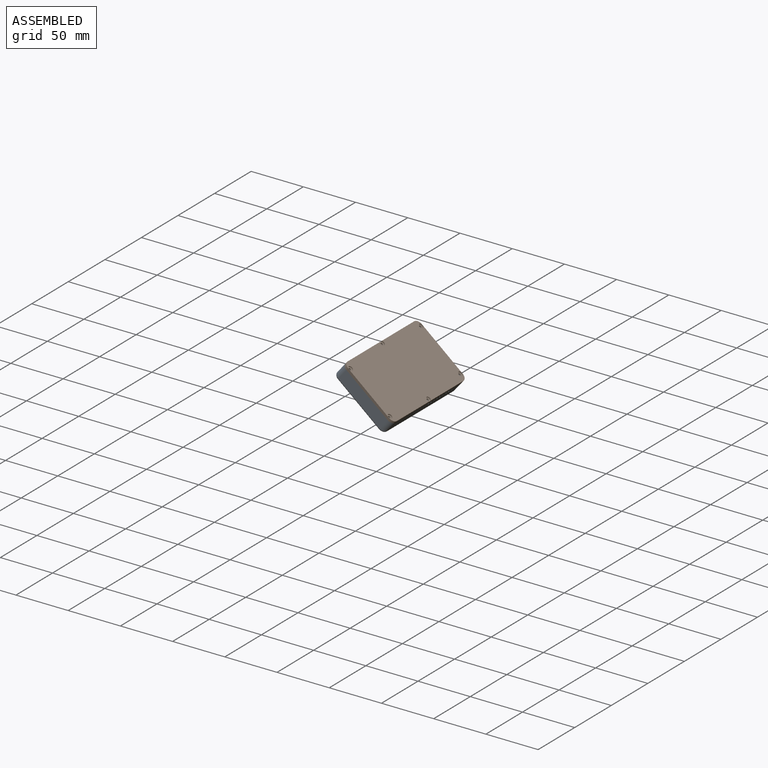
[diagram: assembled view]
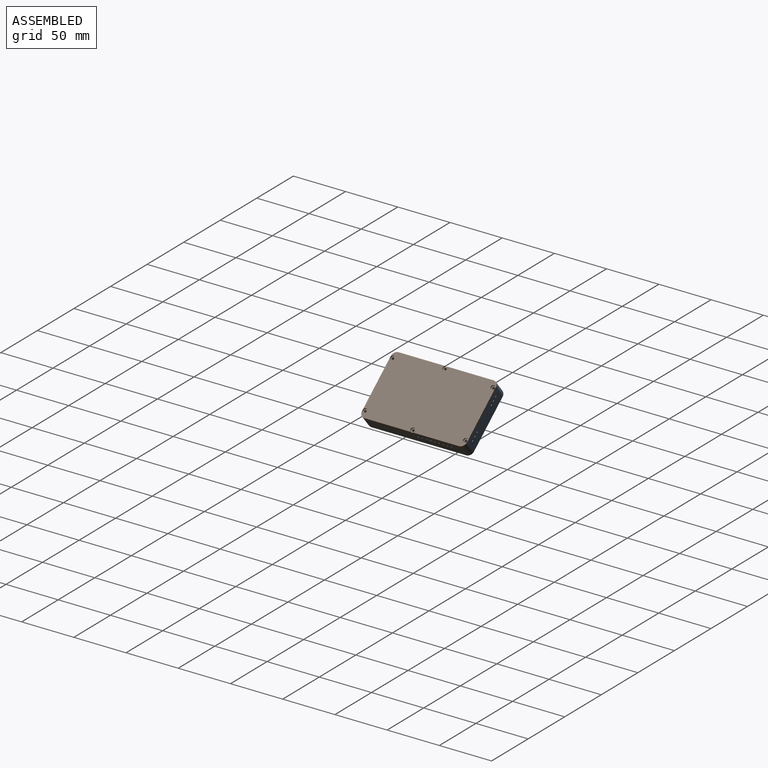
[diagram: assembled view, second angle]
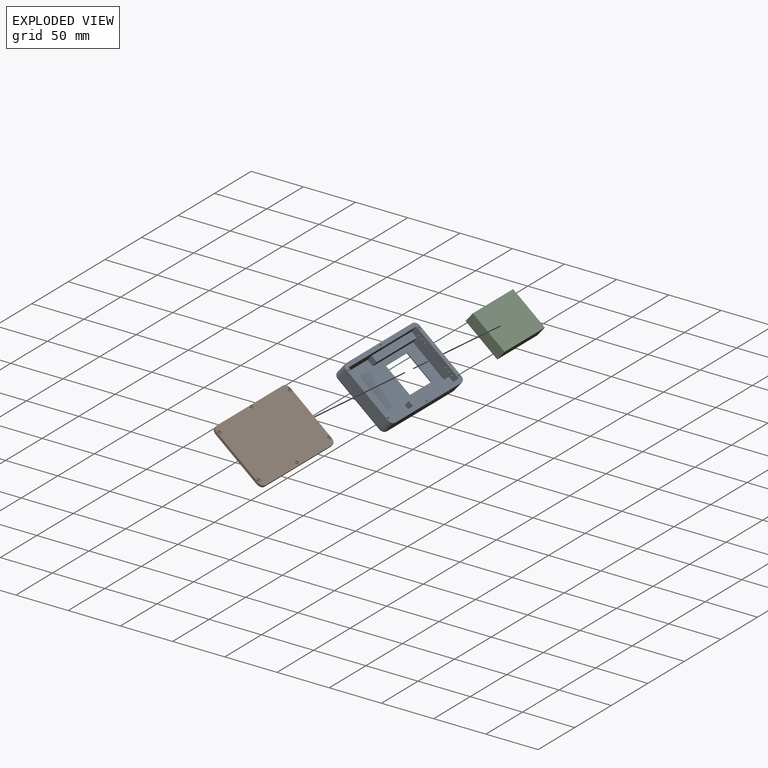
[diagram: exploded view]
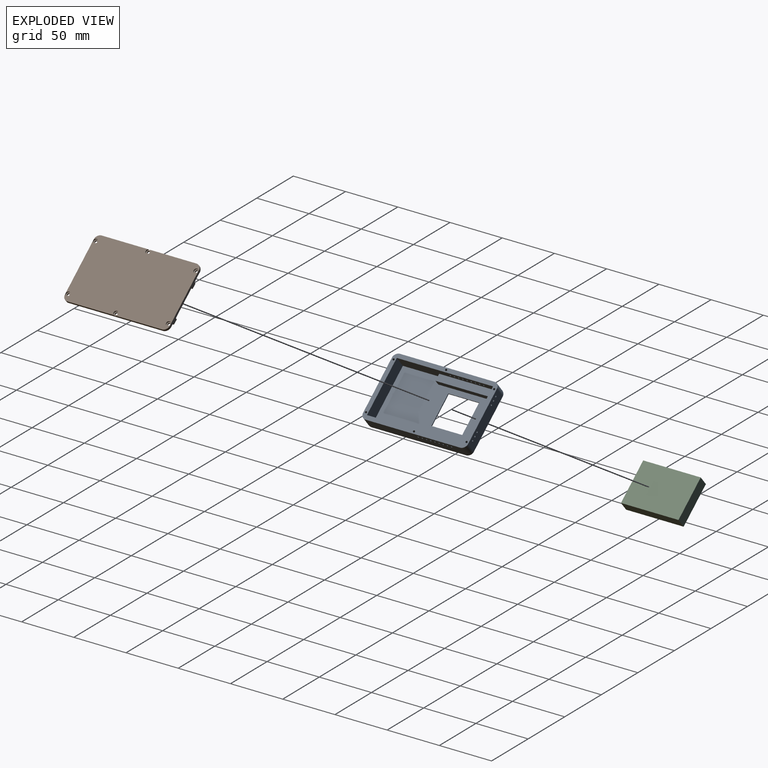
[diagram: exploded view, second angle]
FCSTD DOCUMENT  (FreeCAD 0.20R29410 (Git))
Label: sensor-assembly3
License: All rights reserved
LicenseURL: http://en.wikipedia.org/wiki/All_rights_reserved
objects: Part::FeaturePython×41, App::FeaturePython×29, App::Link×4
note: 40 computed .brp shape members not serialized (recipe doc carries the construction recipe); baked Part::Feature solids carry a one-line shape summary decoded from their .brp
EXTERNAL_REF file=battery.FCStd obj=Link
EXTERNAL_REF file=enclosure.FCStd obj=Link
EXTERNAL_REF file=cover.FCStd obj=Link
EXTERNAL_REF file=electronics.FCStd obj=Link

FEATURE [App::Link] Link  label="battery"
  LinkPlacement = pos=(-19.0821,-74.1201,-25.3205) rot=(0.321491,0.321491,0.890667;1.68632rad)
  LinkedObject = -> <external battery.FCStd>#Link
  Placement = pos=(-19.0821,-74.1201,-25.3205) rot=(0.321491,0.321491,0.890667;1.68632rad)
  _LinkOwner = 81
FEATURE [App::Link] Link002  label="enclosure"
  LinkPlacement = pos=(-19.9132,-46.6701,-25.9303) rot=(0,1,0;0.692802rad)
  LinkedObject = -> <external enclosure.FCStd>#Link
  Placement = pos=(-19.9132,-46.6701,-25.9303) rot=(0,1,0;0.692802rad)
  _LinkOwner = 81
FEATURE [App::Link] Link003  label="cover"
  LinkPlacement = pos=(-19.5939,-46.6701,-25.5455) rot=(0.339515,0,0.940601;3.14159rad)
  LinkedObject = -> <external cover.FCStd>#Link
  Placement = pos=(-19.5939,-46.6701,-25.5455) rot=(0.339515,0,0.940601;3.14159rad)
  _LinkOwner = 81
FEATURE [App::Link] Link004  label="electronics"
  LinkPlacement = pos=(-19.3899,-28.1201,-25.065) rot=(0,1,0;0.692802rad)
  LinkedObject = -> <external electronics.FCStd>#Link
  Placement = pos=(-19.3899,-28.1201,-25.065) rot=(0,1,0;0.692802rad)
  _LinkOwner = 81
FEATURE [Part::FeaturePython] Parts  # WARN: FeaturePython — macro-defined, semantics opaque (R4)
  Group = -> [Link,Link002,Link003,Link004]
  GroupMode = 0
FEATURE [Part::FeaturePython] Assembly  label="Assembly3"  # WARN: FeaturePython — macro-defined, semantics opaque (R4)
  AutoRelax = true
  BuildShape = 0
  Freeze = false
  Group = -> [Constraints,Elements,Parts]
  Verbose = false
  _SolverType = 1
  _Version = 1
FEATURE [App::FeaturePython] Constraints  # WARN: FeaturePython — macro-defined, semantics opaque (R4)
  Group = -> [Constraint004,Constraint,Constraint006,Constraint007,Constraint008,Constraint009,Constraint010,Constraint011,Constraint012]
  _Version = 1
FEATURE [App::FeaturePython] Elements  # WARN: FeaturePython — macro-defined, semantics opaque (R4)
  Group = -> [_Element,_Element001,_Element002,_Element003,_Element006,_Element007,_Element008,_Element009,_Element010,_Element012,_Element014,_Element015,_Element016,_Element017,_Element018,_Element019,_Element020,_Element021,_Element022,_Element023,_Element024,_Element025,_Element026,_Element027,_Element028,_Element029,_Element030,_Element031,_Element032,_Element033,_Element034,_Element035,_Element036,+6 more]
FEATURE [Part::FeaturePython] _Element  # link proxy (typed FeaturePython)
  Detach = false
  LinkTransform = true
  LinkedObject = -> Link [Pad.Face5]
  _Parent = -> Elements
FEATURE [Part::FeaturePython] _Element001  # link proxy (typed FeaturePython)
  Detach = false
  LinkTransform = true
  LinkedObject = -> Link002 [Pad001.Face15]
  _Parent = -> Elements
FEATURE [Part::FeaturePython] _Element002  # link proxy (typed FeaturePython)
  Detach = false
  LinkTransform = true
  LinkedObject = -> Link [Pad.Face2]
  _Parent = -> Elements
FEATURE [Part::FeaturePython] _Element003  # link proxy (typed FeaturePython)
  Detach = false
  LinkTransform = true
  LinkedObject = -> Link002 [Pad001.Face11]
  _Parent = -> Elements
FEATURE [Part::FeaturePython] _Element006  # link proxy (typed FeaturePython)
  Detach = false
  LinkTransform = true
  LinkedObject = -> Link002 [Pad001.Face13]
  _Parent = -> Elements
FEATURE [Part::FeaturePython] _Element007  # link proxy (typed FeaturePython)
  Detach = false
  LinkTransform = true
  LinkedObject = -> Link [Pad.Face3]
  _Parent = -> Elements
FEATURE [Part::FeaturePython] _Element008  # link proxy (typed FeaturePython)
  Detach = false
  LinkTransform = true
  LinkedObject = -> Link002 [Pad001.Face12]
  _Parent = -> Elements
FEATURE [Part::FeaturePython] _Element009  # link proxy (typed FeaturePython)
  Detach = false
  LinkTransform = true
  LinkedObject = -> Link002 [Pad002.Face13]
  _Parent = -> Elements
FEATURE [Part::FeaturePython] _Element010  # link proxy (typed FeaturePython)
  Detach = false
  LinkTransform = true
  LinkedObject = -> Link [Pad.Face4]
  _Parent = -> Elements
FEATURE [Part::FeaturePython] _Element012  # link proxy (typed FeaturePython)
  Detach = false
  LinkTransform = true
  LinkedObject = -> Link002 [Pad002.Face11]
  _Parent = -> Elements
FEATURE [Part::FeaturePython] _Element014  # link proxy (typed FeaturePython)
  Detach = false
  LinkTransform = true
  LinkedObject = -> Link002 [Pad002.Face18]
  _Parent = -> Elements
FEATURE [Part::FeaturePython] _Element015  # link proxy (typed FeaturePython)
  Detach = false
  LinkTransform = true
  LinkedObject = -> Link002 [Pad002.Face17]
  _Parent = -> Elements
FEATURE [App::FeaturePython] Constraint004  label="PlaneAlignment004"  # WARN: FeaturePython — macro-defined, semantics opaque (R4)
  Angle = 0
  AnglePitch = 0
  AngleRoll = 0
  Cascade = false
  Disabled = false
  Group = -> [ElementLink008,ElementLink009]
  LockAngle = false
  _ConstraintType = 37
  _Parent = -> Constraints
FEATURE [App::FeaturePython] ElementLink008  label="_Element016"  # link proxy (typed FeaturePython)
  LinkTransform = true
  LinkedObject = -> _Element016
  _Parent = -> Constraint004
FEATURE [Part::FeaturePython] _Element016  # link proxy (typed FeaturePython)
  Detach = false
  LinkTransform = true
  LinkedObject = -> Link [Pad.Face1]
  _Parent = -> Elements
FEATURE [App::FeaturePython] ElementLink009  label="_Element017"  # link proxy (typed FeaturePython)
  LinkTransform = true
  LinkedObject = -> _Element017
  _Parent = -> Constraint004
FEATURE [Part::FeaturePython] _Element017  # link proxy (typed FeaturePython)
  Detach = false
  LinkTransform = true
  LinkedObject = -> Link002 [Pad002.Face14]
  _Parent = -> Elements
FEATURE [App::FeaturePython] Constraint  label="PlaneAlignment"  # WARN: FeaturePython — macro-defined, semantics opaque (R4)
  Angle = 0
  AnglePitch = 0
  AngleRoll = 0
  Cascade = false
  Disabled = false
  Group = -> [ElementLink,ElementLink012]
  LockAngle = false
  _ConstraintType = 37
  _Parent = -> Constraints
FEATURE [App::FeaturePython] ElementLink  label="_Element"  # link proxy (typed FeaturePython)
  LinkTransform = true
  LinkedObject = -> _Element
  _Parent = -> Constraint
FEATURE [App::FeaturePython] ElementLink012  label="_Element015"  # link proxy (typed FeaturePython)
  LinkTransform = true
  LinkedObject = -> _Element015
  _Parent = -> Constraint
FEATURE [App::FeaturePython] Constraint006  label="PlaneAlignment006"  # WARN: FeaturePython — macro-defined, semantics opaque (R4)
  Angle = 0
  AnglePitch = 0
  AngleRoll = 0
  Cascade = false
  Disabled = false
  Group = -> [ElementLink013,ElementLink014]
  LockAngle = false
  _ConstraintType = 37
  _Parent = -> Constraints
FEATURE [App::FeaturePython] ElementLink013  label="_Element010"  # link proxy (typed FeaturePython)
  LinkTransform = true
  LinkedObject = -> _Element010
  _Parent = -> Constraint006
FEATURE [App::FeaturePython] ElementLink014  label="_Element009"  # link proxy (typed FeaturePython)
  LinkTransform = true
  LinkedObject = -> _Element009
  _Parent = -> Constraint006
FEATURE [Part::FeaturePython] _Element018  # link proxy (typed FeaturePython)
  Detach = false
  LinkTransform = true
  LinkedObject = -> Link003 [Pocket.Face4]
  _Parent = -> Elements
FEATURE [Part::FeaturePython] _Element019  # link proxy (typed FeaturePython)
  Detach = false
  LinkTransform = true
  LinkedObject = -> Link002 [Pocket003.Face23]
  _Parent = -> Elements
FEATURE [Part::FeaturePython] _Element020  # link proxy (typed FeaturePython)
  Detach = false
  LinkTransform = true
  LinkedObject = -> Link003 [Pocket.Vertex21]
  _Parent = -> Elements
FEATURE [Part::FeaturePython] _Element021  # link proxy (typed FeaturePython)
  Detach = false
  LinkTransform = true
  LinkedObject = -> Link002 [Pocket003.Vertex53]
  _Parent = -> Elements
FEATURE [Part::FeaturePython] _Element022  # link proxy (typed FeaturePython)
  Detach = false
  LinkTransform = true
  LinkedObject = -> Link003 [Pad.Vertex16]
  _Parent = -> Elements
FEATURE [Part::FeaturePython] _Element023  # link proxy (typed FeaturePython)
  Detach = false
  LinkTransform = true
  LinkedObject = -> Link002 [Pocket001.Vertex32]
  _Parent = -> Elements
FEATURE [Part::FeaturePython] _Element024  # link proxy (typed FeaturePython)
  Detach = false
  LinkTransform = true
  LinkedObject = -> Link002 [Pocket001.Vertex28]
  _Parent = -> Elements
FEATURE [Part::FeaturePython] _Element025  # link proxy (typed FeaturePython)
  Detach = false
  LinkTransform = true
  LinkedObject = -> Link003 [Pad.Vertex13]
  _Parent = -> Elements
FEATURE [Part::FeaturePython] _Element026  # link proxy (typed FeaturePython)
  Detach = false
  LinkTransform = true
  LinkedObject = -> Link002 [Pocket001.Vertex31]
  _Parent = -> Elements
FEATURE [Part::FeaturePython] _Element027  # link proxy (typed FeaturePython)
  Detach = false
  LinkTransform = true
  LinkedObject = -> Link003 [Pad.Vertex14]
  _Parent = -> Elements
FEATURE [Part::FeaturePython] _Element028  # link proxy (typed FeaturePython)
  Detach = false
  LinkTransform = true
  LinkedObject = -> Link002 [Pocket003.Face46]
  _Parent = -> Elements
FEATURE [Part::FeaturePython] _Element029  # link proxy (typed FeaturePython)
  Detach = false
  LinkTransform = true
  LinkedObject = -> Link002 [Pocket003.Vertex25]
  _Parent = -> Elements
FEATURE [Part::FeaturePython] _Element030  # link proxy (typed FeaturePython)
  Detach = false
  LinkTransform = true
  LinkedObject = -> Link003 [Pad.Vertex1]
  _Parent = -> Elements
FEATURE [Part::FeaturePython] _Element031  # link proxy (typed FeaturePython)
  Detach = false
  LinkTransform = true
  LinkedObject = -> Link002 [Pocket003.Vertex54]
  _Parent = -> Elements
FEATURE [Part::FeaturePython] _Element032  # link proxy (typed FeaturePython)
  Detach = false
  LinkTransform = true
  LinkedObject = -> Link002 [Pocket003.Vertex26]
  _Parent = -> Elements
FEATURE [Part::FeaturePython] _Element033  # link proxy (typed FeaturePython)
  Detach = false
  LinkTransform = true
  LinkedObject = -> Link003 [Pad.Vertex5]
  _Parent = -> Elements
FEATURE [App::FeaturePython] Constraint007  label="PointsCoincident"  # WARN: FeaturePython — macro-defined, semantics opaque (R4)
  Disabled = false
  Group = -> [ElementLink015,ElementLink016]
  _ConstraintType = 1
  _Parent = -> Constraints
FEATURE [App::FeaturePython] ElementLink015  label="_Element027"  # link proxy (typed FeaturePython)
  LinkTransform = true
  LinkedObject = -> _Element027
  _Parent = -> Constraint007
FEATURE [App::FeaturePython] ElementLink016  label="_Element032"  # link proxy (typed FeaturePython)
  LinkTransform = true
  LinkedObject = -> _Element032
  _Parent = -> Constraint007
FEATURE [App::FeaturePython] Constraint008  label="PointsCoincident001"  # WARN: FeaturePython — macro-defined, semantics opaque (R4)
  Disabled = false
  Group = -> [ElementLink017,ElementLink018]
  _ConstraintType = 1
  _Parent = -> Constraints
FEATURE [App::FeaturePython] ElementLink017  label="_Element022"  # link proxy (typed FeaturePython)
  LinkTransform = true
  LinkedObject = -> _Element022
  _Parent = -> Constraint008
FEATURE [App::FeaturePython] ElementLink018  label="_Element029"  # link proxy (typed FeaturePython)
  LinkTransform = true
  LinkedObject = -> _Element029
  _Parent = -> Constraint008
FEATURE [App::FeaturePython] Constraint009  label="PointsCoincident002"  # WARN: FeaturePython — macro-defined, semantics opaque (R4)
  Disabled = false
  Group = -> [ElementLink019,ElementLink020]
  _ConstraintType = 1
  _Parent = -> Constraints
FEATURE [App::FeaturePython] ElementLink019  label="_Element034"  # link proxy (typed FeaturePython)
  LinkTransform = true
  LinkedObject = -> _Element034
  _Parent = -> Constraint009
FEATURE [Part::FeaturePython] _Element034  # link proxy (typed FeaturePython)
  Detach = false
  LinkTransform = true
  LinkedObject = -> Link002 [Pocket003.Vertex55]
  _Parent = -> Elements
FEATURE [App::FeaturePython] ElementLink020  label="_Element033"  # link proxy (typed FeaturePython)
  LinkTransform = true
  LinkedObject = -> _Element033
  _Parent = -> Constraint009
FEATURE [App::FeaturePython] Constraint010  label="PlaneAlignment007"  # WARN: FeaturePython — macro-defined, semantics opaque (R4)
  Angle = 0
  AnglePitch = 0
  AngleRoll = 0
  Cascade = false
  Disabled = false
  Group = -> [ElementLink021,ElementLink022]
  LockAngle = false
  _ConstraintType = 37
  _Parent = -> Constraints
FEATURE [App::FeaturePython] ElementLink021  label="_Element035"  # link proxy (typed FeaturePython)
  LinkTransform = true
  LinkedObject = -> _Element035
  _Parent = -> Constraint010
FEATURE [Part::FeaturePython] _Element035  # link proxy (typed FeaturePython)
  Detach = false
  LinkTransform = true
  LinkedObject = -> Link004 [Pad.Face5]
  _Parent = -> Elements
FEATURE [App::FeaturePython] ElementLink022  label="_Element036"  # link proxy (typed FeaturePython)
  LinkTransform = true
  LinkedObject = -> _Element036
  _Parent = -> Constraint010
FEATURE [Part::FeaturePython] _Element036  # link proxy (typed FeaturePython)
  Detach = false
  LinkTransform = true
  LinkedObject = -> Link002 [Pocket003.Face22]
  _Parent = -> Elements
FEATURE [App::FeaturePython] Constraint011  label="PointsCoincident003"  # WARN: FeaturePython — macro-defined, semantics opaque (R4)
  Disabled = false
  Group = -> [ElementLink023,ElementLink024]
  _ConstraintType = 1
  _Parent = -> Constraints
FEATURE [App::FeaturePython] ElementLink023  label="_Element037"  # link proxy (typed FeaturePython)
  LinkTransform = true
  LinkedObject = -> _Element037
  _Parent = -> Constraint011
FEATURE [Part::FeaturePython] _Element037  # link proxy (typed FeaturePython)
  Detach = false
  LinkTransform = true
  LinkedObject = -> Link002 [Pocket003.Vertex57]
  _Parent = -> Elements
FEATURE [App::FeaturePython] ElementLink024  label="_Element038"  # link proxy (typed FeaturePython)
  LinkTransform = true
  LinkedObject = -> _Element038
  _Parent = -> Constraint011
FEATURE [Part::FeaturePython] _Element038  # link proxy (typed FeaturePython)
  Detach = false
  LinkTransform = true
  LinkedObject = -> Link004 [Pad.Vertex1]
  _Parent = -> Elements
FEATURE [Part::FeaturePython] _Element039  # link proxy (typed FeaturePython)
  Detach = false
  LinkTransform = true
  LinkedObject = -> Link004 [Pad.Vertex3]
  _Parent = -> Elements
FEATURE [Part::FeaturePython] _Element040  # link proxy (typed FeaturePython)
  Detach = false
  LinkTransform = true
  LinkedObject = -> Link002 [Pocket003.Vertex58]
  _Parent = -> Elements
FEATURE [App::FeaturePython] Constraint012  label="PlaneAlignment008"  # WARN: FeaturePython — macro-defined, semantics opaque (R4)
  Angle = 0
  AnglePitch = 0
  AngleRoll = 0
  Cascade = false
  Disabled = false
  Group = -> [ElementLink025,ElementLink026]
  LockAngle = false
  _ConstraintType = 37
  _Parent = -> Constraints
FEATURE [App::FeaturePython] ElementLink025  label="_Element041"  # link proxy (typed FeaturePython)
  LinkTransform = true
  LinkedObject = -> _Element041
  _Parent = -> Constraint012
FEATURE [Part::FeaturePython] _Element041  # link proxy (typed FeaturePython)
  Detach = false
  LinkTransform = true
  LinkedObject = -> Link002 [Pocket003.Face48]
  _Parent = -> Elements
FEATURE [App::FeaturePython] ElementLink026  label="_Element042"  # link proxy (typed FeaturePython)
  LinkTransform = true
  LinkedObject = -> _Element042
  _Parent = -> Constraint012
FEATURE [Part::FeaturePython] _Element042  # link proxy (typed FeaturePython)
  Detach = false
  LinkTransform = true
  LinkedObject = -> Link004 [Pad.Face1]
  _Parent = -> Elements

RESOLVED EXTERNAL PARTS (link-assembly join: the EXTERNAL_REF files above that resolve inside this repo's crawl, each included once):
---- part cover.FCStd = doc fcstd_3ed699d86daf ----
FCSTD DOCUMENT  (FreeCAD 0.20R29410 (Git))
Label: cover
License: All rights reserved
LicenseURL: http://en.wikipedia.org/wiki/All_rights_reserved
objects: Sketcher::SketchObject×3, PartDesign::Pad×2, PartDesign::Pocket×1, App::Link×1, PartDesign::Body×1
note: 10 computed .brp shape members not serialized (recipe doc carries the construction recipe); baked Part::Feature solids carry a one-line shape summary decoded from their .brp

FEATURE [Sketcher::SketchObject] Sketch008
  FullyConstrained = true
  MapMode = 5
  Placement = pos=(0,0,13.5) rot=(0,0,1;0rad)
  sketch-geometry (14):
    g0: LineSegment StartX=-30.575 StartY=45.3 StartZ=0 EndX=-30.575 EndY=-45.3 EndZ=0
    g1: LineSegment StartX=30.575 StartY=-45.3 StartZ=0 EndX=30.575 EndY=45.3 EndZ=0
    g2: ArcOfCircle CenterX=25.575 CenterY=45.3 CenterZ=0 NormalX=0 NormalY=0 NormalZ=1 AngleXU=0 Radius=5 StartAngle=-2.691e-13 EndAngle=1.5708
    g3: ArcOfCircle CenterX=-25.575 CenterY=45.3 CenterZ=0 NormalX=0 NormalY=0 NormalZ=1 AngleXU=0 Radius=5 StartAngle=1.5708 EndAngle=3.14159
    g4: ArcOfCircle CenterX=-25.575 CenterY=-45.3 CenterZ=0 NormalX=0 NormalY=0 NormalZ=1 AngleXU=0 Radius=5 StartAngle=3.14159 EndAngle=4.71239
    g5: ArcOfCircle CenterX=25.575 CenterY=-45.3 CenterZ=0 NormalX=0 NormalY=0 NormalZ=1 AngleXU=0 Radius=5 StartAngle=4.71239 EndAngle=6.28319
    g6: LineSegment StartX=-25.575 StartY=50.3 StartZ=0 EndX=25.575 EndY=50.3 EndZ=0
    g7: LineSegment StartX=-25.575 StartY=-50.3 StartZ=0 EndX=25.575 EndY=-50.3 EndZ=0
    g8: Circle CenterX=24.475 CenterY=48.14 CenterZ=0 NormalX=0 NormalY=0 NormalZ=1 AngleXU=0 Radius=1.15
    g9: Circle CenterX=-24.475 CenterY=48.14 CenterZ=0 NormalX=0 NormalY=0 NormalZ=1 AngleXU=0 Radius=1.15
    g10: Circle CenterX=-24.475 CenterY=-48.14 CenterZ=0 NormalX=0 NormalY=0 NormalZ=1 AngleXU=0 Radius=1.15
    g11: Circle CenterX=24.475 CenterY=-48.14 CenterZ=0 NormalX=0 NormalY=0 NormalZ=1 AngleXU=0 Radius=1.15
    g12: Circle CenterX=28.54 CenterY=0 CenterZ=0 NormalX=0 NormalY=0 NormalZ=1 AngleXU=0 Radius=1.15
    g13: Circle CenterX=-28.54 CenterY=0 CenterZ=0 NormalX=0 NormalY=0 NormalZ=1 AngleXU=0 Radius=1.15
  constraints (35):
    c: Diameter(g8) = 2.3
    c: Diameter(g9) = 2.3
    c: Diameter(g11) = 2.3
    c: Diameter(g10) = 2.3
    c: Diameter(g12) = 2.3
    c: Diameter(g13) = 2.3
    c: Radius(g2) = 5
    c: Equal(g2,g3)
    c: Equal(g3,g5)
    c: Equal(g5,g4)
    c: Equal(g7,g6)
    c: Equal(g1,g0)
    c: Tangent(g1,g5) = -1.5708
    c: Tangent(g5,g7) = -1.5708
    c: Tangent(g4,g7) = -1.5708
    c: Tangent(g0,g4) = -1.5708
    c: Tangent(g0,g3) = -1.5708
    c: Tangent(g3,g6) = 1.5708
    c: Tangent(g2,g6) = 1.5708
    c: Tangent(g1,g2) = -1.5708
    c: Symmetric(g3,g2,g-2)
    c: Symmetric(g1,g1,g-1)
    c: DistanceX(g8,g2) = 1.1
    c: DistanceY(g8,g2) = 2.16
    c: DistanceY(g9,g3) = 2.16
    c: DistanceX(g3,g9) = 1.1
    c: DistanceX(g4,g10) = 1.1
    c: DistanceX(g11,g5) = 1.1
    c: DistanceY(g5,g11) = 2.16
    c: DistanceY(g4,g10) = 2.16
    c: DistanceX(g13,g12) = 57.08
    c: Symmetric(g12,g13,g-2)
    c: PointOnObject(g12,g-1)
    c: DistanceX(g0,g1) = 61.15
    c: DistanceY(g5,g2) = 100.6
FEATURE [PartDesign::Pad] Pad003
  Direction = (0,0,1)
  Length = 2.5
  Length2 = 10
  Placement = pos=(0,0,13.5) rot=(0,0,1;0rad)
  Profile = -> Sketch008
  ReferenceAxis = -> Sketch008 [N_Axis]
  Type = 0
FEATURE [Sketcher::SketchObject] Sketch
  ExternalGeometry = -> [Pad003]
  FullyConstrained = true
  MapMode = 5
  Placement = pos=(0,0,16) rot=(0,0,1;0rad)
  Support = -> [Pad003]
  sketch-geometry (6):
    g0: Circle CenterX=-24.475 CenterY=-48.14 CenterZ=0 NormalX=0 NormalY=0 NormalZ=1 AngleXU=0 Radius=2.125
    g1: Circle CenterX=24.475 CenterY=-48.14 CenterZ=0 NormalX=0 NormalY=0 NormalZ=1 AngleXU=0 Radius=2.125
    g2: Circle CenterX=-24.475 CenterY=48.14 CenterZ=0 NormalX=0 NormalY=0 NormalZ=1 AngleXU=0 Radius=2.125
    g3: Circle CenterX=24.475 CenterY=48.14 CenterZ=0 NormalX=0 NormalY=0 NormalZ=1 AngleXU=0 Radius=2.125
    g4: Circle CenterX=28.54 CenterY=0 CenterZ=0 NormalX=0 NormalY=0 NormalZ=1 AngleXU=0 Radius=2.125
    g5: Circle CenterX=-28.54 CenterY=0 CenterZ=0 NormalX=0 NormalY=0 NormalZ=1 AngleXU=0 Radius=2.125
  constraints (14):
    c: Coincident(g0,g-8)
    c: Coincident(g1,g-7)
    c: Diameter(g3) = 4.25
    c: Coincident(g2,g-4)
    c: Coincident(g3,g-3)
    c: Coincident(g4,g-6)
    c: Coincident(g5,g-5)
    c: Equal(g2,g5)
    c: Equal(g5,g0)
    c: Equal(g0,g1)
    c: Equal(g1,g4)
    c: Equal(g4,g3)
    c: DistanceX(g-12,g-11) = 61.15
    c: DistanceY(g-10,g-9) = 100.6
FEATURE [PartDesign::Pocket] Pocket
  BaseFeature = -> Pad003
  Direction = (0,0,-1)
  Length = 1.1
  Length2 = 5
  Placement = pos=(0,0,13.5) rot=(0,0,1;0rad)
  Profile = -> Sketch
  ReferenceAxis = -> Sketch [N_Axis]
  Type = 0
FEATURE [App::Link] Link  label="cover001"
  LinkedObject = -> Body
FEATURE [Sketcher::SketchObject] Sketch009
  ExternalGeometry = -> [Pocket]
  FullyConstrained = true
  MapMode = 5
  Placement = pos=(0,0,13.5) rot=(1,0,0;3.14159rad)
  Support = -> [Pocket]
  sketch-geometry (16):
    g0: LineSegment StartX=14.075 StartY=44.8 StartZ=0 EndX=19.075 EndY=44.8 EndZ=0
    g1: LineSegment StartX=19.075 StartY=44.8 StartZ=0 EndX=19.075 EndY=37.8 EndZ=0
    g2: LineSegment StartX=19.075 StartY=37.8 StartZ=0 EndX=14.075 EndY=37.8 EndZ=0
    g3: LineSegment StartX=14.075 StartY=37.8 StartZ=0 EndX=14.075 EndY=44.8 EndZ=0
    g4: LineSegment StartX=-19.075 StartY=44.8 StartZ=0 EndX=-14.075 EndY=44.8 EndZ=0
    g5: LineSegment StartX=-14.075 StartY=44.8 StartZ=0 EndX=-14.075 EndY=37.8 EndZ=0
    g6: LineSegment StartX=-14.075 StartY=37.8 StartZ=0 EndX=-19.075 EndY=37.8 EndZ=0
    g7: LineSegment StartX=-19.075 StartY=37.8 StartZ=0 EndX=-19.075 EndY=44.8 EndZ=0
    g8: LineSegment StartX=11.075 StartY=-8.4 StartZ=0 EndX=19.075 EndY=-8.4 EndZ=0
    g9: LineSegment StartX=19.075 StartY=-8.4 StartZ=0 EndX=19.075 EndY=-5.9 EndZ=0
    g10: LineSegment StartX=19.075 StartY=-5.9 StartZ=0 EndX=11.075 EndY=-5.9 EndZ=0
    g11: LineSegment StartX=11.075 StartY=-5.9 StartZ=0 EndX=11.075 EndY=-8.4 EndZ=0
    g12: LineSegment StartX=-11.075 StartY=-8.4 StartZ=0 EndX=-19.075 EndY=-8.4 EndZ=0
    g13: LineSegment StartX=-19.075 StartY=-8.4 StartZ=0 EndX=-19.075 EndY=-5.9 EndZ=0
    g14: LineSegment StartX=-19.075 StartY=-5.9 StartZ=0 EndX=-11.075 EndY=-5.9 EndZ=0
    g15: LineSegment StartX=-11.075 StartY=-5.9 StartZ=0 EndX=-11.075 EndY=-8.4 EndZ=0
  constraints (48):
    c: Coincident(g0,g1)
    c: Coincident(g1,g2)
    c: Coincident(g2,g3)
    c: Coincident(g3,g0)
    c: Horizontal(g0)
    c: Horizontal(g2)
    c: Vertical(g1)
    c: Vertical(g3)
    c: DistanceX(g0,g-3) = 11.5
    c: DistanceY(g0,g-5) = 5.5
    c: Distance(g1) = 7
    c: Distance(g0) = 5
    c: Coincident(g4,g5)
    c: Coincident(g5,g6)
    c: Coincident(g6,g7)
    c: Coincident(g7,g4)
    c: Horizontal(g4)
    c: Horizontal(g6)
    c: Vertical(g5)
    c: Vertical(g7)
    c: Distance(g5) = 7
    c: Distance(g4) = 5
    c: DistanceX(g-4,g4) = 11.5
    c: DistanceY(g4,g-5) = 5.5
    c: Coincident(g8,g9)
    c: Coincident(g9,g10)
    c: Coincident(g10,g11)
    c: Coincident(g11,g8)
    c: Horizontal(g8)
    c: Horizontal(g10)
    c: Vertical(g9)
    c: Vertical(g11)
    c: Distance(g9) = 2.5
    c: DistanceX(g10,g10) = 8
    c: DistanceX(g8,g-3) = 11.5
    c: DistanceY(g-6,g9) = 44.4
    c: Coincident(g12,g13)
    c: Coincident(g13,g14)
    c: Coincident(g14,g15)
    c: Coincident(g15,g12)
    c: Horizontal(g12)
    c: Horizontal(g14)
    c: Vertical(g13)
    c: Vertical(g15)
    c: DistanceY(g-6,g13) = 44.4
    c: DistanceX(g-4,g13) = 11.5
    c: Equal(g14,g10)
    c: Equal(g11,g15)
FEATURE [PartDesign::Pad] Pad
  BaseFeature = -> Pocket
  Direction = (0,0,-1)
  Length = 10.45
  Length2 = 10
  Placement = pos=(0,0,13.5) rot=(0,0,1;0rad)
  Profile = -> Sketch009
  ReferenceAxis = -> Sketch009 [N_Axis]
  Type = 0
FEATURE [PartDesign::Body] Body  label="cover"
  Group = -> [Sketch008,Pad003,Sketch,Pocket,Sketch009,Pad]
  Origin = -> Origin
  Tip = -> Pad
---- part electronics.FCStd = doc fcstd_2c29c64a46d6 ----
FCSTD DOCUMENT  (FreeCAD 0.20R29410 (Git))
Label: electronics
License: All rights reserved
LicenseURL: http://en.wikipedia.org/wiki/All_rights_reserved
objects: Sketcher::SketchObject×1, PartDesign::Pad×1, PartDesign::Body×1, App::Link×1
note: 4 computed .brp shape members not serialized (recipe doc carries the construction recipe); baked Part::Feature solids carry a one-line shape summary decoded from their .brp

FEATURE [Sketcher::SketchObject] Sketch
  FullyConstrained = true
  MapMode = 5
  Support = -> [XY_Plane]
  sketch-geometry (4):
    g0: LineSegment StartX=-19.75 StartY=27.55 StartZ=0 EndX=19.75 EndY=27.55 EndZ=0
    g1: LineSegment StartX=19.75 StartY=27.55 StartZ=0 EndX=19.75 EndY=-27.55 EndZ=0
    g2: LineSegment StartX=19.75 StartY=-27.55 StartZ=0 EndX=-19.75 EndY=-27.55 EndZ=0
    g3: LineSegment StartX=-19.75 StartY=-27.55 StartZ=0 EndX=-19.75 EndY=27.55 EndZ=0
  constraints (10):
    c: Coincident(g0,g1)
    c: Coincident(g1,g2)
    c: Coincident(g2,g3)
    c: Coincident(g3,g0)
    c: Horizontal(g2)
    c: Vertical(g1)
    c: DistanceY(g1,g1) = 55.1
    c: DistanceX(g0,g0) = 39.5
    c: Symmetric(g0,g0,g-2)
    c: Symmetric(g2,g0,g-1)
FEATURE [PartDesign::Pad] Pad  label="pad"
  Direction = (0,0,1)
  Length = 11
  Length2 = 10
  Profile = -> Sketch
  ReferenceAxis = -> Sketch [N_Axis]
  Type = 0
FEATURE [PartDesign::Body] Body  label="electronics"
  Group = -> [Sketch,Pad]
  Origin = -> Origin
  Tip = -> Pad
FEATURE [App::Link] Link  label="electronics001"
  LinkedObject = -> Body
---- part enclosure.FCStd = doc fcstd_9a53d325e945 ----
FCSTD DOCUMENT  (FreeCAD 0.20R29410 (Git))
Label: enclosure
License: All rights reserved
LicenseURL: http://en.wikipedia.org/wiki/All_rights_reserved
objects: Sketcher::SketchObject×7, PartDesign::Pocket×4, PartDesign::Pad×3, PartDesign::Fillet×2, App::Link×1, PartDesign::Body×1
note: 26 computed .brp shape members not serialized (recipe doc carries the construction recipe); baked Part::Feature solids carry a one-line shape summary decoded from their .brp

FEATURE [Sketcher::SketchObject] Sketch
  FullyConstrained = true
  MapMode = 5
  Support = -> [XY_Plane]
  sketch-geometry (4):
    g0: LineSegment StartX=-30.575 StartY=50.3 StartZ=0 EndX=30.575 EndY=50.3 EndZ=0
    g1: LineSegment StartX=30.575 StartY=50.3 StartZ=0 EndX=30.575 EndY=-50.3 EndZ=0
    g2: LineSegment StartX=30.575 StartY=-50.3 StartZ=0 EndX=-30.575 EndY=-50.3 EndZ=0
    g3: LineSegment StartX=-30.575 StartY=-50.3 StartZ=0 EndX=-30.575 EndY=50.3 EndZ=0
  constraints (10):
    c: Coincident(g0,g1)
    c: Coincident(g1,g2)
    c: Coincident(g2,g3)
    c: Coincident(g3,g0)
    c: Horizontal(g0)
    c: Vertical(g3)
    c: DistanceX(g2,g2) = 61.15
    c: Symmetric(g2,g1,g-2)
    c: DistanceY(g1,g1) = 100.6
    c: Symmetric(g0,g1,g-1)
FEATURE [PartDesign::Pad] Pad
  Direction = (0,0,1)
  Length = 1
  Length2 = 10
  Profile = -> Sketch
  ReferenceAxis = -> Sketch [N_Axis]
  Type = 0
FEATURE [Sketcher::SketchObject] Sketch001
  ExternalGeometry = -> [Pad]
  FullyConstrained = true
  MapMode = 5
  Placement = pos=(0,0,1) rot=(0,0,1;0rad)
  Support = -> [Pad]
  sketch-geometry (8):
    g0: LineSegment StartX=-26.5 StartY=46.1 StartZ=0 EndX=26.5 EndY=46.1 EndZ=0
    g1: LineSegment StartX=26.5 StartY=46.1 StartZ=0 EndX=26.5 EndY=-46.1 EndZ=0
    g2: LineSegment StartX=26.5 StartY=-46.1 StartZ=0 EndX=-26.5 EndY=-46.1 EndZ=0
    g3: LineSegment StartX=-26.5 StartY=-46.1 StartZ=0 EndX=-26.5 EndY=46.1 EndZ=0
    g4: LineSegment StartX=-30.575 StartY=50.3 StartZ=0 EndX=30.575 EndY=50.3 EndZ=0
    g5: LineSegment StartX=30.575 StartY=50.3 StartZ=0 EndX=30.575 EndY=-50.3 EndZ=0
    g6: LineSegment StartX=30.575 StartY=-50.3 StartZ=0 EndX=-30.575 EndY=-50.3 EndZ=0
    g7: LineSegment StartX=-30.575 StartY=-50.3 StartZ=0 EndX=-30.575 EndY=50.3 EndZ=0
  constraints (20):
    c: Coincident(g0,g1)
    c: Coincident(g1,g2)
    c: Coincident(g2,g3)
    c: Coincident(g3,g0)
    c: Horizontal(g0)
    c: Vertical(g1)
    c: Coincident(g4,g5)
    c: Coincident(g5,g6)
    c: Coincident(g6,g7)
    c: Coincident(g7,g4)
    c: Horizontal(g4)
    c: Horizontal(g6)
    c: Vertical(g5)
    c: Vertical(g7)
    c: Coincident(g4,g-3)
    c: Coincident(g5,g-4)
    c: DistanceX(g0,g0) = 53
    c: DistanceY(g1,g1) = 92.2
    c: Symmetric(g2,g1,g-2)
    c: Symmetric(g0,g2,g-1)
FEATURE [PartDesign::Pad] Pad001
  BaseFeature = -> Pad
  Direction = (0,0,1)
  Length = 13
  Length2 = 10
  Profile = -> Sketch001
  ReferenceAxis = -> Sketch001 [N_Axis]
  Type = 0
FEATURE [App::Link] Link  label="enclosure001"
  LinkedObject = -> Body
FEATURE [Sketcher::SketchObject] Sketch002
  ExternalGeometry = -> [Pad001]
  FullyConstrained = true
  MapMode = 5
  Placement = pos=(0,0,1) rot=(0,0,1;0rad)
  Support = -> [Pad001]
  sketch-geometry (8):
    g0: LineSegment StartX=19.9 StartY=46.1 StartZ=0 EndX=26.5 EndY=46.1 EndZ=0
    g1: LineSegment StartX=26.5 StartY=46.1 StartZ=0 EndX=26.5 EndY=-8.65 EndZ=0
    g2: LineSegment StartX=26.5 StartY=-8.65 StartZ=0 EndX=19.9 EndY=-8.65 EndZ=0
    g3: LineSegment StartX=19.9 StartY=-8.65 StartZ=0 EndX=19.9 EndY=46.1 EndZ=0
    g4: LineSegment StartX=-19.9 StartY=46.1 StartZ=0 EndX=-26.5 EndY=46.1 EndZ=0
    g5: LineSegment StartX=-26.5 StartY=46.1 StartZ=0 EndX=-26.5 EndY=-8.65 EndZ=0
    g6: LineSegment StartX=-26.5 StartY=-8.65 StartZ=0 EndX=-19.9 EndY=-8.65 EndZ=0
    g7: LineSegment StartX=-19.9 StartY=-8.65 StartZ=0 EndX=-19.9 EndY=46.1 EndZ=0
  constraints (21):
    c: Coincident(g0,g1)
    c: Coincident(g1,g2)
    c: Coincident(g2,g3)
    c: Coincident(g3,g0)
    c: Horizontal(g0)
    c: Horizontal(g2)
    c: Vertical(g1)
    c: Vertical(g3)
    c: Coincident(g0,g-3)
    c: Coincident(g4,g5)
    c: Coincident(g5,g6)
    c: Coincident(g6,g7)
    c: Coincident(g7,g4)
    c: Horizontal(g6)
    c: Vertical(g5)
    c: Vertical(g7)
    c: Coincident(g4,g-4)
    c: DistanceX(g4,g0) = 39.8
    c: DistanceY(g3,g3) = 54.75
    c: Equal(g7,g3)
    c: Symmetric(g4,g0,g-2)
FEATURE [PartDesign::Pad] Pad002
  BaseFeature = -> Pad001
  Direction = (0,0,1)
  Length = 6
  Length2 = 10
  Profile = -> Sketch002
  ReferenceAxis = -> Sketch002 [N_Axis]
  Type = 0
FEATURE [Sketcher::SketchObject] Sketch003
  ExternalGeometry = -> [Pad002]
  FullyConstrained = true
  MapMode = 5
  Placement = pos=(0,0,1) rot=(0,0,1;0rad)
  Support = -> [Pad002]
  sketch-geometry (4):
    g0: LineSegment StartX=-15 StartY=33.1 StartZ=0 EndX=15 EndY=33.1 EndZ=0
    g1: LineSegment StartX=15 StartY=33.1 StartZ=0 EndX=15 EndY=3.6 EndZ=0
    g2: LineSegment StartX=15 StartY=3.6 StartZ=0 EndX=-15 EndY=3.6 EndZ=0
    g3: LineSegment StartX=-15 StartY=3.6 StartZ=0 EndX=-15 EndY=33.1 EndZ=0
  constraints (12):
    c: Coincident(g0,g1)
    c: Coincident(g1,g2)
    c: Coincident(g2,g3)
    c: Coincident(g3,g0)
    c: Horizontal(g2)
    c: Vertical(g1)
    c: Vertical(g3)
    c: DistanceX(g0,g0) = 30
    c: DistanceY(g0,g-3) = 13
    c: DistanceY(g1,g1) = 29.5
    c: DistanceX(g-1,g0) = 15
    c: Horizontal(g0)
FEATURE [PartDesign::Pocket] Pocket
  BaseFeature = -> Pad002
  Direction = (0,0,-1)
  Length = 0
  Length2 = 5
  Profile = -> Sketch003
  ReferenceAxis = -> Sketch003 [N_Axis]
  Type = 3
  UpToFace = -> Pad002 [Face4]
FEATURE [PartDesign::Fillet] Fillet
  Base = -> Pocket [Edge22,Edge8,Edge20,Edge5,Edge16,Edge1,Edge17,Edge2]
  BaseFeature = -> Pocket
  Radius = 5
  SupportTransform = false
  UseAllEdges = false
FEATURE [PartDesign::Fillet] Fillet001
  Base = -> Fillet [Edge1,Edge5,Edge7]
  BaseFeature = -> Fillet
  Radius = 1.99
  SupportTransform = false
  UseAllEdges = false
FEATURE [Sketcher::SketchObject] Sketch005
  ExternalGeometry = -> [Fillet001]
  FullyConstrained = false
  MapMode = 5
  Placement = pos=(0,0,14) rot=(0,0,1;0rad)
  Support = -> [Fillet001]
  sketch-geometry (7):
    g0: Circle CenterX=24.5 CenterY=48.1375 CenterZ=0 NormalX=0 NormalY=0 NormalZ=1 AngleXU=0 Radius=0.95
    g1: LineSegment StartX=22.4501 StartY=48.1375 StartZ=0 EndX=27.765 EndY=48.1375 EndZ=0
    g2: Circle CenterX=-24.5 CenterY=48.1375 CenterZ=0 NormalX=0 NormalY=0 NormalZ=1 AngleXU=0 Radius=0.95
    g3: Circle CenterX=-24.5 CenterY=-48.1375 CenterZ=0 NormalX=0 NormalY=0 NormalZ=1 AngleXU=0 Radius=0.95
    g4: Circle CenterX=24.5 CenterY=-48.1375 CenterZ=0 NormalX=0 NormalY=0 NormalZ=1 AngleXU=0 Radius=0.95
    g5: Circle CenterX=28.5375 CenterY=0 CenterZ=0 NormalX=0 NormalY=0 NormalZ=1 AngleXU=0 Radius=0.95
    g6: Circle CenterX=-28.5375 CenterY=0 CenterZ=0 NormalX=0 NormalY=0 NormalZ=1 AngleXU=0 Radius=0.95
  constraints (22):
    c: Diameter(g0) = 1.9
    c: Horizontal(g1)
    c: PointOnObject(g0,g1)
    c: DistanceX(g0,g-3) = 2
    c: DistanceY(g-3,g-5) = 4.2
    c: DistanceY(g-3,g2) = 2.0375
    c: DistanceX(g-3,g2) = 2
    c: DistanceX(g4,g-4) = 2
    c: DistanceY(g4,g-4) = 2.0375
    c: DistanceX(g-4,g3) = 2
    c: DistanceY(g3,g-4) = 2.0375
    c: DistanceX(g5,g-7) = 2.0375
    c: DistanceX(g-6,g-7) = 4.075
    c: DistanceX(g6,g-8) = 2.0375
    c: PointOnObject(g6,g-1)
    c: PointOnObject(g5,g-1)
    c: Equal(g4,g3)
    c: Equal(g3,g6)
    c: Equal(g6,g5)
    c: Equal(g5,g2)
    c: Equal(g2,g0)
    c: DistanceY(g-6,g0) = 2.0375
FEATURE [PartDesign::Pocket] Pocket001
  BaseFeature = -> Fillet001
  Direction = (0,0,-1)
  Length = 12
  Length2 = 5
  Profile = -> Sketch005
  ReferenceAxis = -> Sketch005 [N_Axis]
  Type = 0
FEATURE [Sketcher::SketchObject] Sketch006
  ExternalGeometry = -> [Pocket001]
  FullyConstrained = false
  MapMode = 5
  Placement = pos=(30.575,0,0) rot=(0.57735,0.57735,0.57735;2.0944rad)
  Support = -> [Pocket001]
  sketch-geometry (11):
    g0: Circle CenterX=35.3 CenterY=10.25 CenterZ=0 NormalX=0 NormalY=0 NormalZ=1 AngleXU=0 Radius=0.75
    g1: LineSegment StartX=43.65 StartY=10.25 StartZ=0 EndX=-17.2822 EndY=10.25 EndZ=0
    g2: Circle CenterX=31.3 CenterY=10.25 CenterZ=0 NormalX=0 NormalY=0 NormalZ=1 AngleXU=0 Radius=0.75
    g3: Circle CenterX=23.3 CenterY=10.25 CenterZ=0 NormalX=0 NormalY=0 NormalZ=1 AngleXU=0 Radius=0.75
    g4: Circle CenterX=27.3 CenterY=10.25 CenterZ=0 NormalX=0 NormalY=0 NormalZ=1 AngleXU=0 Radius=0.75
    g5: LineSegment StartX=-6.35 StartY=11.7225 StartZ=0 EndX=-6.35 EndY=9.03689 EndZ=0
    g6: Circle CenterX=15.3 CenterY=10.25 CenterZ=0 NormalX=0 NormalY=0 NormalZ=1 AngleXU=0 Radius=0.75
    g7: Circle CenterX=19.3 CenterY=10.25 CenterZ=0 NormalX=0 NormalY=0 NormalZ=1 AngleXU=0 Radius=0.75
    g8: Circle CenterX=7.3 CenterY=10.25 CenterZ=0 NormalX=0 NormalY=0 NormalZ=1 AngleXU=0 Radius=0.75
    g9: Circle CenterX=11.3 CenterY=10.25 CenterZ=0 NormalX=0 NormalY=0 NormalZ=1 AngleXU=0 Radius=0.75
    g10: Circle CenterX=3.3 CenterY=10.25 CenterZ=0 NormalX=0 NormalY=0 NormalZ=1 AngleXU=0 Radius=0.75
  constraints (30):
    c: Diameter(g0) = 1.5
    c: Horizontal(g1)
    c: DistanceY(g1,g-3) = 3.75
    c: PointOnObject(g0,g1)
    c: PointOnObject(g2,g1)
    c: PointOnObject(g4,g1)
    c: Vertical(g5)
    c: DistanceX(g3,g4) = 4
    c: DistanceX(g4,g2) = 4
    c: DistanceX(g2,g0) = 4
    c: PointOnObject(g3,g1)
    c: DistanceX(g6,g7) = 4
    c: PointOnObject(g7,g1)
    c: DistanceX(g7,g3) = 4
    c: PointOnObject(g6,g1)
    c: PointOnObject(g8,g1)
    c: Equal(g6,g7)
    c: Equal(g7,g3)
    c: Equal(g3,g4)
    c: Equal(g4,g2)
    c: Equal(g2,g0)
    c: DistanceX(g0,g-5) = 10
    c: PointOnObject(g9,g1)
    c: Equal(g9,g0)
    c: DistanceX(g9,g6) = 4
    c: DistanceX(g8,g9) = 4
    c: Equal(g8,g0)
    c: PointOnObject(g10,g1)
    c: DistanceX(g10,g8) = 4
    c: Equal(g10,g0)
FEATURE [PartDesign::Pocket] Pocket002
  BaseFeature = -> Pocket001
  Direction = (-1,0,0)
  Length = 0
  Length2 = 5
  Profile = -> Sketch006
  ReferenceAxis = -> Sketch006 [N_Axis]
  Type = 3
  UpToFace = -> Pocket001 [Face17]
FEATURE [Sketcher::SketchObject] Sketch007
  ExternalGeometry = -> [Pocket002]
  FullyConstrained = false
  MapMode = 5
  Placement = pos=(0,50.3,0) rot=(0,0.707107,0.707107;3.14159rad)
  Support = -> [Pocket002]
  sketch-geometry (7):
    g0: LineSegment StartX=-25.575 StartY=10.25 StartZ=0 EndX=25.575 EndY=10.25 EndZ=0
    g1: Circle CenterX=20.575 CenterY=10.25 CenterZ=0 NormalX=0 NormalY=0 NormalZ=1 AngleXU=0 Radius=0.75
    g2: Circle CenterX=16.575 CenterY=10.25 CenterZ=0 NormalX=0 NormalY=0 NormalZ=1 AngleXU=0 Radius=0.75
    g3: Circle CenterX=12.575 CenterY=10.25 CenterZ=0 NormalX=0 NormalY=0 NormalZ=1 AngleXU=0 Radius=0.75
    g4: Circle CenterX=-20.575 CenterY=10.25 CenterZ=0 NormalX=0 NormalY=0 NormalZ=1 AngleXU=0 Radius=0.75
    g5: Circle CenterX=-16.575 CenterY=10.25 CenterZ=0 NormalX=0 NormalY=0 NormalZ=1 AngleXU=0 Radius=0.75
    g6: Circle CenterX=-12.575 CenterY=10.25 CenterZ=0 NormalX=0 NormalY=0 NormalZ=1 AngleXU=0 Radius=0.75
  constraints (21):
    c: Horizontal(g0)
    c: PointOnObject(g1,g0)
    c: Diameter(g1) = 1.5
    c: PointOnObject(g2,g0)
    c: DistanceX(g2,g1) = 4
    c: PointOnObject(g3,g0)
    c: DistanceX(g3,g2) = 4
    c: DistanceX(g4,g5) = 4
    c: DistanceX(g5,g6) = 4
    c: PointOnObject(g5,g0)
    c: PointOnObject(g6,g0)
    c: PointOnObject(g4,g0)
    c: Equal(g4,g5)
    c: Equal(g5,g6)
    c: Equal(g6,g1)
    c: Equal(g1,g2)
    c: Equal(g2,g3)
    c: DistanceX(g1,g0) = 5
    c: DistanceY(g0,g-4) = 3.75
    c: PointOnObject(g0,g-4)
    c: DistanceX(g-5,g4) = 5
FEATURE [PartDesign::Pocket] Pocket003
  BaseFeature = -> Pocket002
  Direction = (0,-1,2e-16)
  Length = 0
  Length2 = 5
  Profile = -> Sketch007
  ReferenceAxis = -> Sketch007 [N_Axis]
  Type = 3
  UpToFace = -> Pocket002 [Face42]
FEATURE [PartDesign::Body] Body  label="enclosure"
  Group = -> [Sketch,Pad,Sketch001,Pad001,Sketch002,Pad002,Sketch003,Pocket,Fillet,Fillet001,Sketch005,Pocket001,Sketch006,Pocket002,Sketch007,Pocket003]
  Origin = -> Origin
  Tip = -> Pocket003
